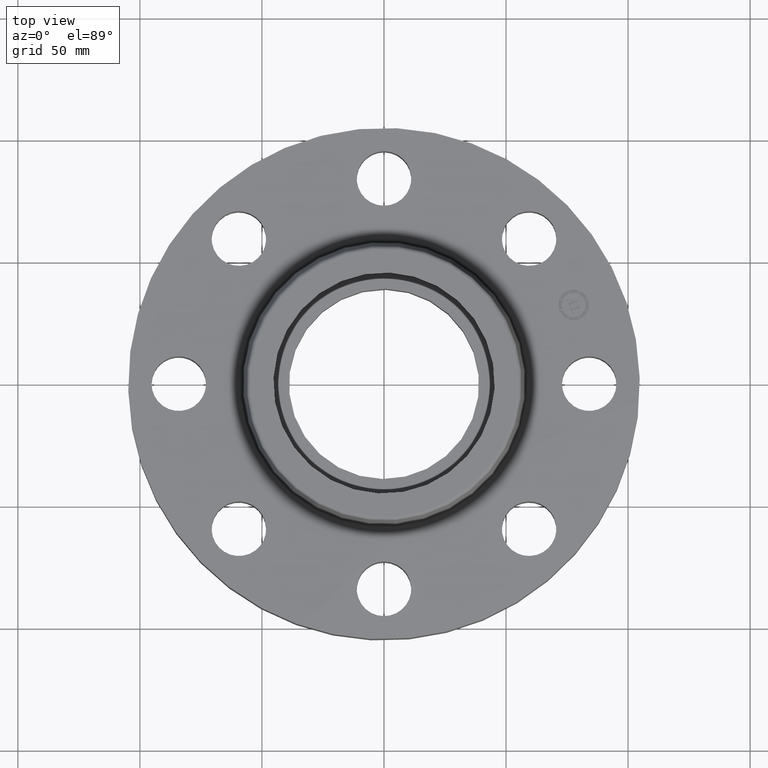
[diagram: clean part render]
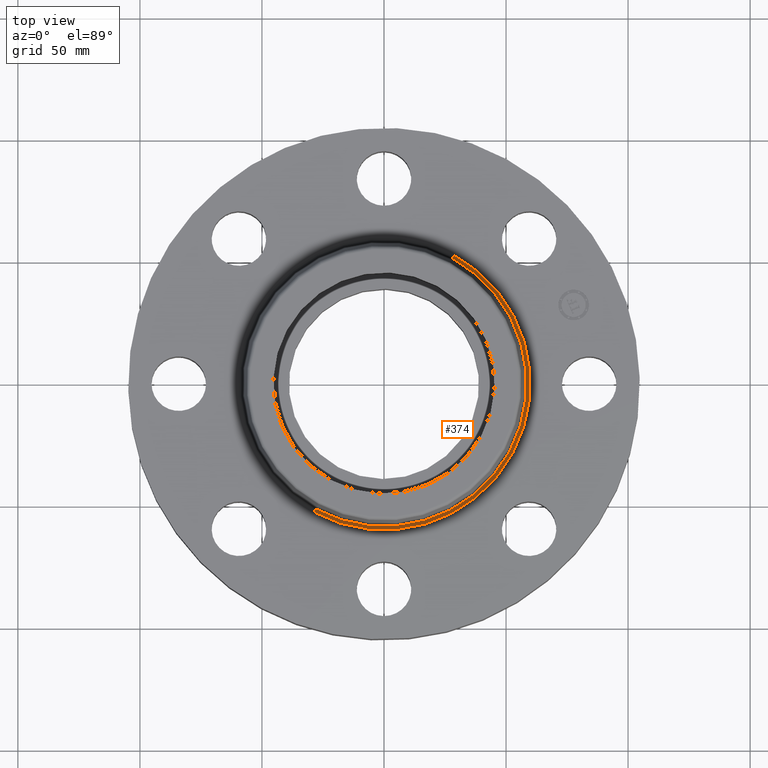
[diagram: same view with one face highlighted and labeled with its STEP entity id]
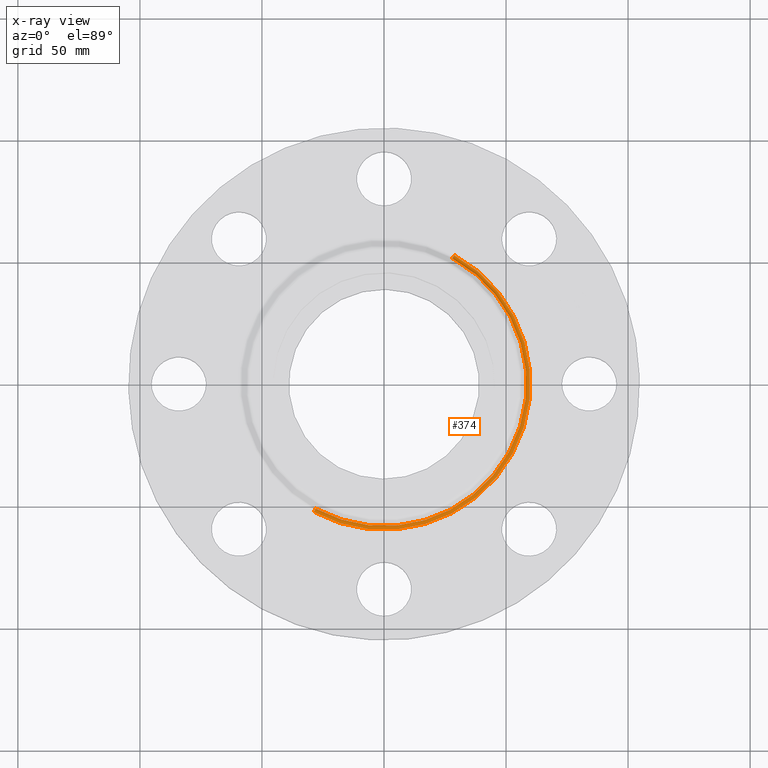
[diagram: x-ray of the same camera — body ghosted, the highlighted face saturated]
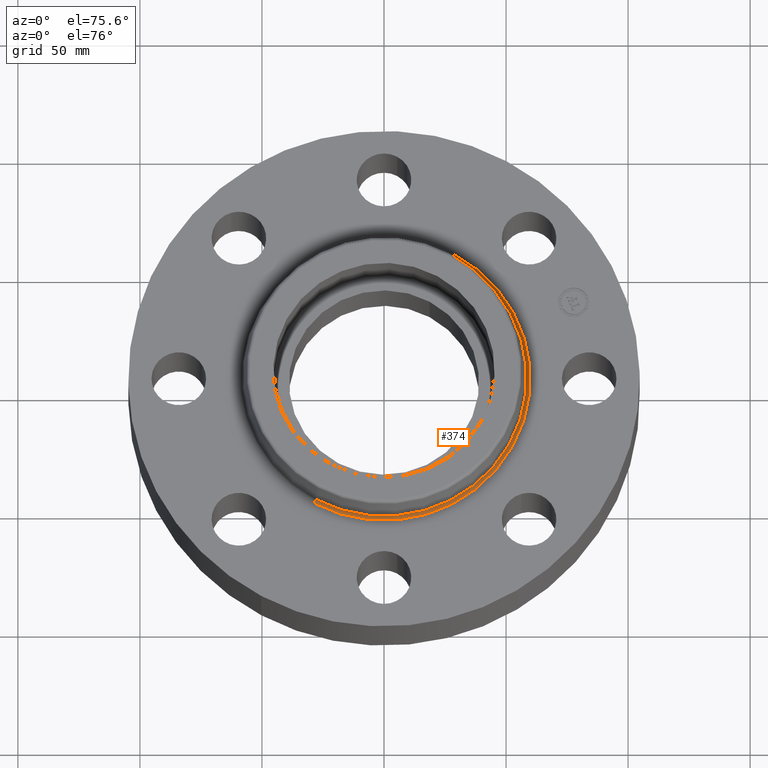
[diagram: same view with one face highlighted and labeled with its STEP entity id]
A machine part, top view. The second image highlights one B-rep face of the part: STEP entity #374.
The next image is the same camera in x-ray: the body ghosted, the highlighted face saturated — about 0% of this face is hidden behind the body in this view.
A second angle (auxiliary view) of the same face is appended — the face is thin or edge-on in the first view.
In plain terms, the highlighted toroidal blend (fillet) surface has major radius 59.9528 mm and minor (blend) radius 1.524 mm.
Its self-contained STEP definition (entity closure, byte-faithful):
#338=AXIS2_PLACEMENT_3D('Torus Axis2P3D',#335,#336,#337) ;
#342=AXIS2_PLACEMENT_3D('Circle Axis2P3D',#340,#341,$) ;
#351=AXIS2_PLACEMENT_3D('Circle Axis2P3D',#349,#350,$) ;
#358=AXIS2_PLACEMENT_3D('Circle Axis2P3D',#356,#357,$) ;
#365=AXIS2_PLACEMENT_3D('Circle Axis2P3D',#363,#364,$) ;
#335=CARTESIAN_POINT('Axis2P3D Location',(0.,0.,1.31000000001)) ;
#340=CARTESIAN_POINT('Axis2P3D Location',(0.,0.,1.25000000001)) ;
#344=CARTESIAN_POINT('Vertex',(1.13161014174,2.07139847022,1.25000000001)) ;
#346=CARTESIAN_POINT('Vertex',(-1.13161014174,-2.07139847022,1.25000000001)) ;
#349=CARTESIAN_POINT('Axis2P3D Location',(1.13161014174,2.07139847022,1.31000000001)) ;
#353=CARTESIAN_POINT('Vertex',(1.10328162249,2.01954346356,1.29958110935)) ;
#356=CARTESIAN_POINT('Axis2P3D Location',(0.,0.,1.29958110935)) ;
#360=CARTESIAN_POINT('Vertex',(-1.10328162249,-2.01954346356,1.29958110935)) ;
#363=CARTESIAN_POINT('Axis2P3D Location',(-1.13161014174,-2.07139847022,1.31000000001)) ;
#336=DIRECTION('Axis2P3D Direction',(0.,0.,-0.0393700787402)) ;
#337=DIRECTION('Axis2P3D XDirection',(-0.0188750212049,-0.0345504945626,0.)) ;
#341=DIRECTION('Axis2P3D Direction',(0.,0.,-0.0393700787402)) ;
#350=DIRECTION('Axis2P3D Direction',(-0.0345504945626,0.0188750212049,0.)) ;
#357=DIRECTION('Axis2P3D Direction',(0.,0.,-0.0393700787402)) ;
#364=DIRECTION('Axis2P3D Direction',(0.0345504945626,-0.0188750212049,0.)) ;
#369=ORIENTED_EDGE('',*,*,#348,.F.) ;
#370=ORIENTED_EDGE('',*,*,#355,.T.) ;
#371=ORIENTED_EDGE('',*,*,#362,.T.) ;
#372=ORIENTED_EDGE('',*,*,#367,.F.) ;
#374=ADVANCED_FACE('PartBody',(#373),#339,.F.) ;
#343=CIRCLE('generated circle',#342,2.36034597788) ;
#352=CIRCLE('generated circle',#351,0.0600000000002) ;
#359=CIRCLE('generated circle',#358,2.3012575127) ;
#366=CIRCLE('generated circle',#365,0.0600000000002) ;
#339=TOROIDAL_SURFACE('homeo Torus',#338,2.36034597788,0.0600000000002) ;
#348=EDGE_CURVE('',#345,#347,#343,.T.) ;
#355=EDGE_CURVE('',#345,#354,#352,.T.) ;
#362=EDGE_CURVE('',#354,#361,#359,.T.) ;
#367=EDGE_CURVE('',#347,#361,#366,.T.) ;
#368=EDGE_LOOP('',(#369,#370,#371,#372)) ;
#373=FACE_OUTER_BOUND('',#368,.T.) ;
#345=VERTEX_POINT('',#344) ;
#347=VERTEX_POINT('',#346) ;
#354=VERTEX_POINT('',#353) ;
#361=VERTEX_POINT('',#360) ;